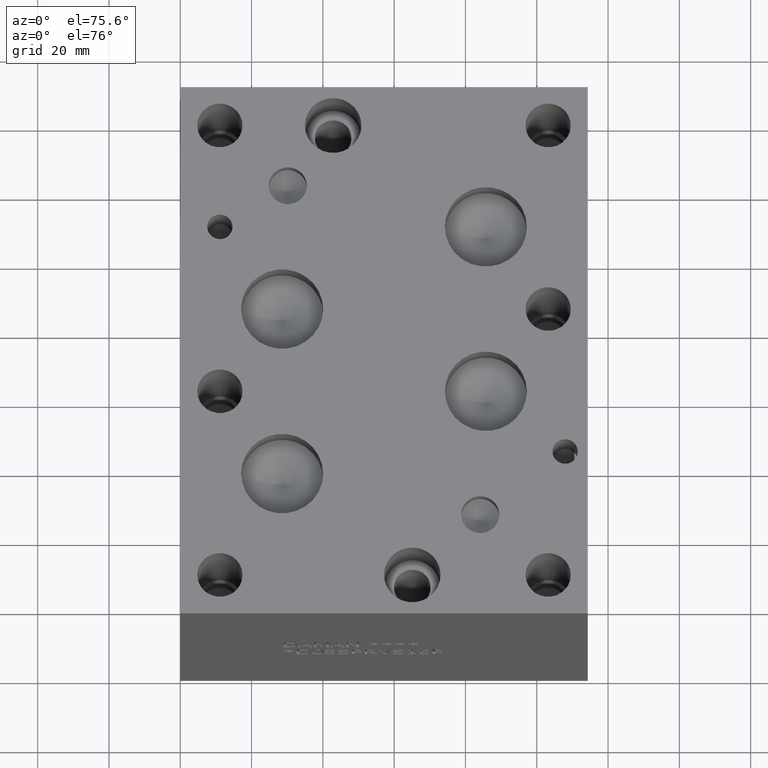
[diagram: clean part render]
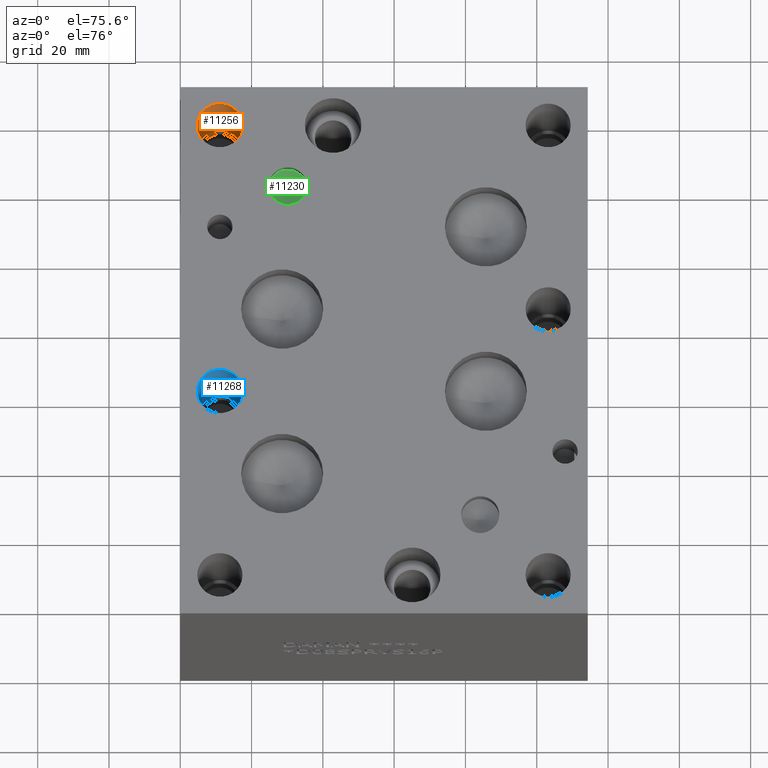
[diagram: same view with three faces highlighted in distinct colors, each labeled with its STEP entity id]
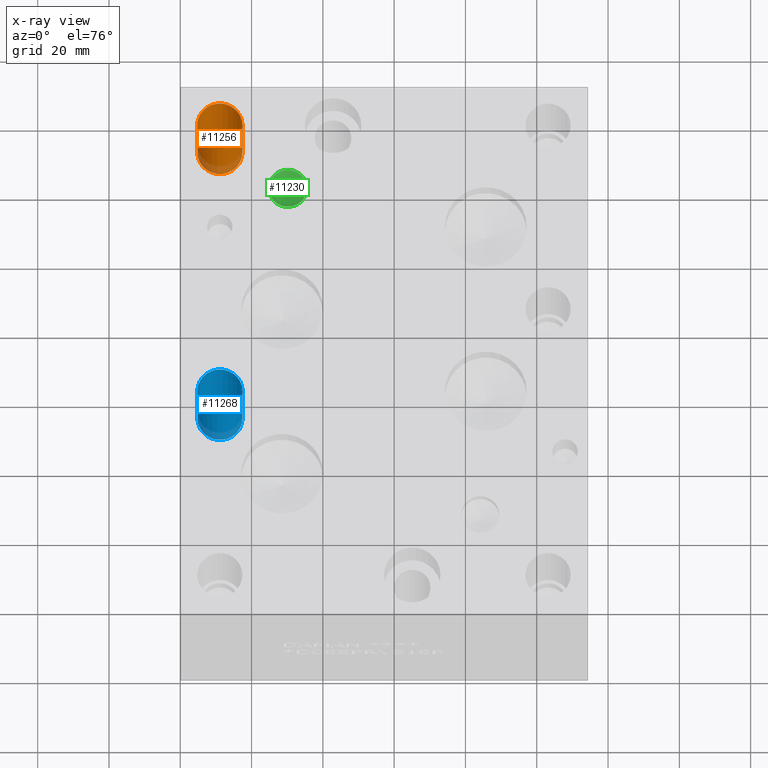
[diagram: x-ray of the same camera — body ghosted, the three highlighted faces saturated]
A machine part, auxiliary view with three faces highlighted in distinct colors.
The next image is the same camera in x-ray (body ghosted, the three faces saturated) — at least one of them is partly hidden behind the body in this view.
Their STEP definitions:

[orange] entity #11256 — the highlighted cylindrical surface (bore or boss wall) has radius 6.35 mm, axis along (0, 0, 1).
#54=CYLINDRICAL_SURFACE('',#11843,6.35);
#237=CIRCLE('',#11840,6.35);
#238=CIRCLE('',#11841,6.35);
#240=CIRCLE('',#11844,6.35);
#241=CIRCLE('',#11845,6.35);
#1255=FACE_OUTER_BOUND('',#1900,.T.);
#1900=EDGE_LOOP('',(#9964,#9965,#9966,#9967,#9968,#9969));
#2998=LINE('',#19236,#4068);
#4068=VECTOR('',#14058,6.35);
#5418=VERTEX_POINT('',#19225);
#5419=VERTEX_POINT('',#19226);
#5421=VERTEX_POINT('',#19232);
#5422=VERTEX_POINT('',#19233);
#6957=EDGE_CURVE('',#5418,#5419,#237,.T.);
#6958=EDGE_CURVE('',#5419,#5418,#238,.T.);
#6960=EDGE_CURVE('',#5421,#5422,#240,.T.);
#6961=EDGE_CURVE('',#5422,#5421,#241,.T.);
#6962=EDGE_CURVE('',#5422,#5419,#2998,.T.);
#9964=ORIENTED_EDGE('',*,*,#6960,.F.);
#9965=ORIENTED_EDGE('',*,*,#6961,.F.);
#9966=ORIENTED_EDGE('',*,*,#6962,.T.);
#9967=ORIENTED_EDGE('',*,*,#6957,.F.);
#9968=ORIENTED_EDGE('',*,*,#6958,.F.);
#9969=ORIENTED_EDGE('',*,*,#6962,.F.);
#11256=ADVANCED_FACE('',(#1255),#54,.F.);
#11840=AXIS2_PLACEMENT_3D('',#19227,#14046,#14047);
#11841=AXIS2_PLACEMENT_3D('',#19228,#14048,#14049);
#11843=AXIS2_PLACEMENT_3D('',#19231,#14052,#14053);
#11844=AXIS2_PLACEMENT_3D('',#19234,#14054,#14055);
#11845=AXIS2_PLACEMENT_3D('',#19235,#14056,#14057);
#14046=DIRECTION('center_axis',(0.,0.,1.));
#14047=DIRECTION('ref_axis',(1.,0.,0.));
#14048=DIRECTION('center_axis',(0.,0.,1.));
#14049=DIRECTION('ref_axis',(1.,0.,0.));
#14052=DIRECTION('center_axis',(0.,0.,1.));
#14053=DIRECTION('ref_axis',(1.,0.,0.));
#14054=DIRECTION('center_axis',(0.,0.,-1.));
#14055=DIRECTION('ref_axis',(1.,0.,0.));
#14056=DIRECTION('center_axis',(0.,0.,-1.));
#14057=DIRECTION('ref_axis',(1.,0.,0.));
#14058=DIRECTION('',(0.,0.,-1.));
#19225=CARTESIAN_POINT('',(17.4498,141.2748,45.974));
#19226=CARTESIAN_POINT('',(4.7498,141.2748,45.974));
#19227=CARTESIAN_POINT('Origin',(11.0998,141.2748,45.974));
#19228=CARTESIAN_POINT('Origin',(11.0998,141.2748,45.974));
#19231=CARTESIAN_POINT('Origin',(11.0998,141.2748,61.087));
#19232=CARTESIAN_POINT('',(17.4498,141.2748,76.2));
#19233=CARTESIAN_POINT('',(4.7498,141.2748,76.2));
#19234=CARTESIAN_POINT('Origin',(11.0998,141.2748,76.2));
#19235=CARTESIAN_POINT('Origin',(11.0998,141.2748,76.2));
#19236=CARTESIAN_POINT('',(4.7498,141.2748,61.087));

[blue] entity #11268 — the highlighted cylindrical surface (bore or boss wall) has radius 6.35 mm, axis along (0, 0, 1).
#60=CYLINDRICAL_SURFACE('',#11876,6.35);
#258=CIRCLE('',#11873,6.35);
#259=CIRCLE('',#11874,6.35);
#261=CIRCLE('',#11877,6.35);
#262=CIRCLE('',#11878,6.35);
#1267=FACE_OUTER_BOUND('',#1915,.T.);
#1915=EDGE_LOOP('',(#10018,#10019,#10020,#10021,#10022,#10023));
#3007=LINE('',#19302,#4077);
#4077=VECTOR('',#14133,6.35);
#5442=VERTEX_POINT('',#19291);
#5443=VERTEX_POINT('',#19292);
#5445=VERTEX_POINT('',#19298);
#5446=VERTEX_POINT('',#19299);
#6987=EDGE_CURVE('',#5442,#5443,#258,.T.);
#6988=EDGE_CURVE('',#5443,#5442,#259,.T.);
#6990=EDGE_CURVE('',#5445,#5446,#261,.T.);
#6991=EDGE_CURVE('',#5446,#5445,#262,.T.);
#6992=EDGE_CURVE('',#5446,#5443,#3007,.T.);
#10018=ORIENTED_EDGE('',*,*,#6990,.F.);
#10019=ORIENTED_EDGE('',*,*,#6991,.F.);
#10020=ORIENTED_EDGE('',*,*,#6992,.T.);
#10021=ORIENTED_EDGE('',*,*,#6987,.F.);
#10022=ORIENTED_EDGE('',*,*,#6988,.F.);
#10023=ORIENTED_EDGE('',*,*,#6992,.F.);
#11268=ADVANCED_FACE('',(#1267),#60,.F.);
#11873=AXIS2_PLACEMENT_3D('',#19293,#14121,#14122);
#11874=AXIS2_PLACEMENT_3D('',#19294,#14123,#14124);
#11876=AXIS2_PLACEMENT_3D('',#19297,#14127,#14128);
#11877=AXIS2_PLACEMENT_3D('',#19300,#14129,#14130);
#11878=AXIS2_PLACEMENT_3D('',#19301,#14131,#14132);
#14121=DIRECTION('center_axis',(0.,0.,1.));
#14122=DIRECTION('ref_axis',(1.,0.,0.));
#14123=DIRECTION('center_axis',(0.,0.,1.));
#14124=DIRECTION('ref_axis',(1.,0.,0.));
#14127=DIRECTION('center_axis',(0.,0.,1.));
#14128=DIRECTION('ref_axis',(1.,0.,0.));
#14129=DIRECTION('center_axis',(0.,0.,-1.));
#14130=DIRECTION('ref_axis',(1.,0.,0.));
#14131=DIRECTION('center_axis',(0.,0.,-1.));
#14132=DIRECTION('ref_axis',(1.,0.,0.));
#14133=DIRECTION('',(0.,0.,-1.));
#19291=CARTESIAN_POINT('',(17.4752,64.2874,45.974));
#19292=CARTESIAN_POINT('',(4.7752,64.2874,45.974));
#19293=CARTESIAN_POINT('Origin',(11.1252,64.2874,45.974));
#19294=CARTESIAN_POINT('Origin',(11.1252,64.2874,45.974));
#19297=CARTESIAN_POINT('Origin',(11.1252,64.2874,61.087));
#19298=CARTESIAN_POINT('',(17.4752,64.2874,76.2));
#19299=CARTESIAN_POINT('',(4.7752,64.2874,76.2));
#19300=CARTESIAN_POINT('Origin',(11.1252,64.2874,76.2));
#19301=CARTESIAN_POINT('Origin',(11.1252,64.2874,76.2));
#19302=CARTESIAN_POINT('',(4.7752,64.2874,61.087));

[green] entity #11230 — the highlighted conical surface has half-angle 60 deg.
#75=CONICAL_SURFACE('',#11766,2.6797,1.0471975511966);
#189=CIRCLE('',#11767,5.3594);
#190=CIRCLE('',#11768,5.3594);
#1229=FACE_OUTER_BOUND('',#1871,.T.);
#1871=EDGE_LOOP('',(#9841,#9842,#9843,#9844));
#2975=LINE('',#19074,#4045);
#4045=VECTOR('',#13879,2.6797);
#5359=VERTEX_POINT('',#19070);
#5360=VERTEX_POINT('',#19071);
#5361=VERTEX_POINT('',#19073);
#6886=EDGE_CURVE('',#5359,#5360,#189,.T.);
#6887=EDGE_CURVE('',#5360,#5361,#2975,.T.);
#6888=EDGE_CURVE('',#5360,#5359,#190,.T.);
#9841=ORIENTED_EDGE('',*,*,#6886,.T.);
#9842=ORIENTED_EDGE('',*,*,#6887,.T.);
#9843=ORIENTED_EDGE('',*,*,#6887,.F.);
#9844=ORIENTED_EDGE('',*,*,#6888,.T.);
#11230=ADVANCED_FACE('',(#1229),#75,.F.);
#11766=AXIS2_PLACEMENT_3D('',#19069,#13875,#13876);
#11767=AXIS2_PLACEMENT_3D('',#19072,#13877,#13878);
#11768=AXIS2_PLACEMENT_3D('',#19075,#13880,#13881);
#13875=DIRECTION('center_axis',(0.,0.,1.));
#13876=DIRECTION('ref_axis',(1.,0.,0.));
#13877=DIRECTION('center_axis',(0.,0.,1.));
#13878=DIRECTION('ref_axis',(1.,0.,0.));
#13879=DIRECTION('',(0.866025403784439,1.06057523872491E-16,-0.5));
#13880=DIRECTION('center_axis',(0.,0.,1.));
#13881=DIRECTION('ref_axis',(1.,0.,0.));
#19069=CARTESIAN_POINT('Origin',(30.1625,123.81992,71.5586244836526));
#19070=CARTESIAN_POINT('',(35.5219,123.81992,73.10575));
#19071=CARTESIAN_POINT('',(24.8031,123.81992,73.10575));
#19072=CARTESIAN_POINT('Origin',(30.1625,123.81992,73.10575));
#19073=CARTESIAN_POINT('',(30.1625,123.81992,70.0114989673051));
#19074=CARTESIAN_POINT('',(27.4828,123.81992,71.5586244836526));
#19075=CARTESIAN_POINT('Origin',(30.1625,123.81992,73.10575));